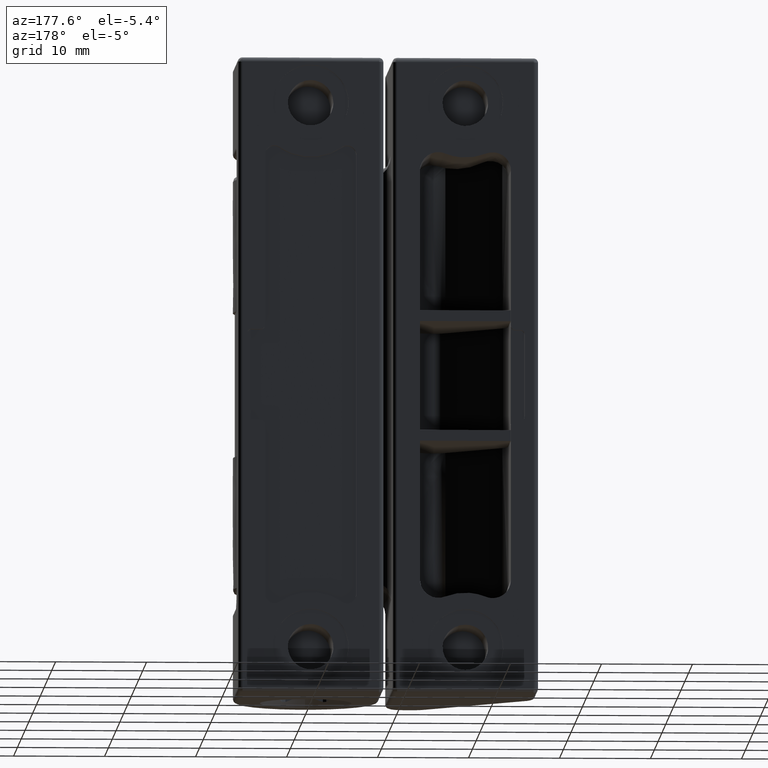
[diagram: clean part render]
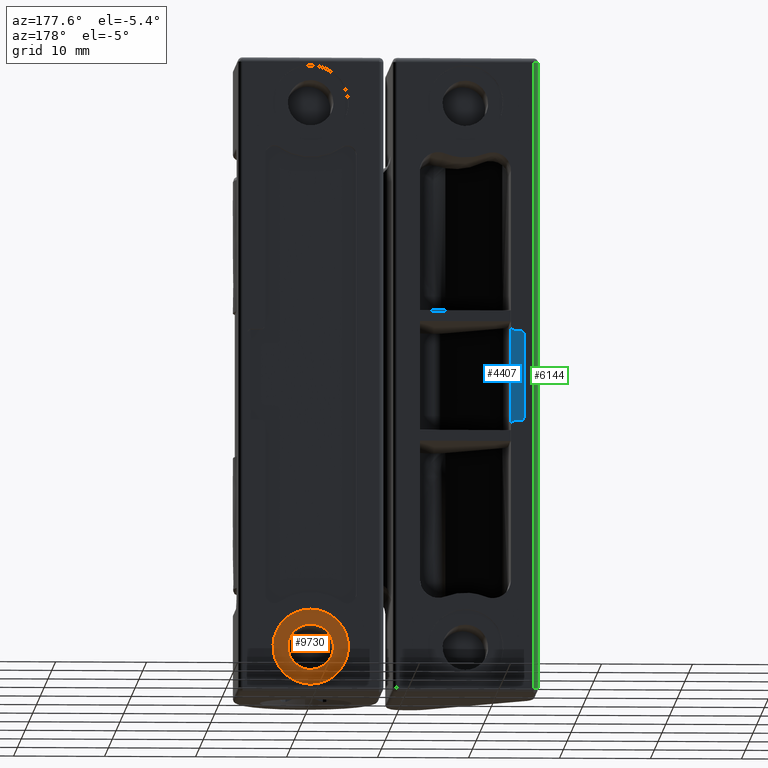
[diagram: same view with three faces highlighted in distinct colors, each labeled with its STEP entity id]
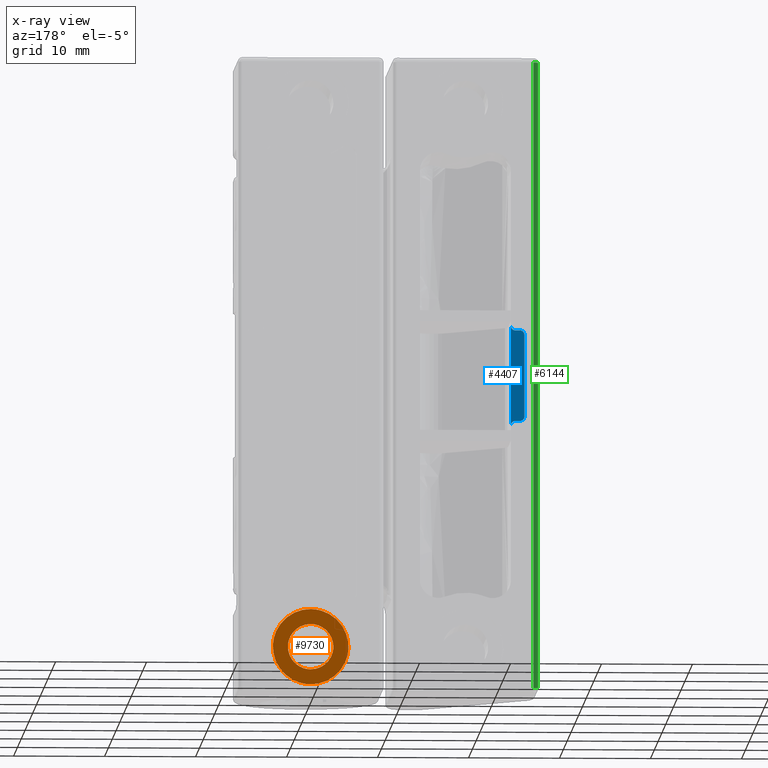
[diagram: x-ray of the same camera — body ghosted, the three highlighted faces saturated]
A machine part, auxiliary view with three faces highlighted in distinct colors.
The next image is the same camera in x-ray (body ghosted, the three faces saturated) — at least one of them is partly hidden behind the body in this view.
Their STEP definitions:

[orange] entity #9730 — the highlighted face is a freeform B-spline surface patch.
#7962=CARTESIAN_POINT('',(2.495336994671909,13.199999999999999,5.152621371445765));
#7963=VERTEX_POINT('',#7962);
#7969=CARTESIAN_POINT('',(5.056850E-014,13.199999999999999,2.499999999999910));
#7970=VERTEX_POINT('',#7969);
#7971=CARTESIAN_POINT('',(2.495336994671910,13.199999999999998,5.152621371445765));
#7972=CARTESIAN_POINT('',(2.500000000000050,13.200000000000005,5.076381919582435));
#7973=CARTESIAN_POINT('',(2.500000000000051,13.199999999999999,4.999999999999910));
#7974=CARTESIAN_POINT('',(2.500000000000051,13.199999999999998,2.499999999999909));
#7975=CARTESIAN_POINT('',(5.056850E-014,13.199999999999999,2.499999999999910));
#7983=(BOUNDED_CURVE()B_SPLINE_CURVE(2,(#7971,#7972,#7973,#7974,#7975),.UNSPECIFIED.,.F.,.U.)B_SPLINE_CURVE_WITH_KNOTS((3,2,3),(0.239332960678628,0.250000000000000,0.500000000000000),.UNSPECIFIED.)CURVE()GEOMETRIC_REPRESENTATION_ITEM()RATIONAL_B_SPLINE_CURVE((0.976072038322666,0.987502786071815,1.0,0.707106781186548,1.0))REPRESENTATION_ITEM(''));
#7984=EDGE_CURVE('',#7963,#7970,#7983,.T.);
#7986=CARTESIAN_POINT('',(-2.495336994671808,13.199999999999999,4.847378628554055));
#7987=VERTEX_POINT('',#7986);
#7988=CARTESIAN_POINT('',(5.056850E-014,13.199999999999999,2.499999999999910));
#7989=CARTESIAN_POINT('',(-2.351765145916473,13.199999999999998,2.499999999999910));
#7990=CARTESIAN_POINT('',(-2.495336994671809,13.199999999999999,4.847378628554056));
#7998=(BOUNDED_CURVE()B_SPLINE_CURVE(2,(#7988,#7989,#7990),.UNSPECIFIED.,.F.,.U.)B_SPLINE_CURVE_WITH_KNOTS((3,3),(0.500000000000000,0.739332960678628),.UNSPECIFIED.)CURVE()GEOMETRIC_REPRESENTATION_ITEM()RATIONAL_B_SPLINE_CURVE((1.0,0.719603995114733,0.976072038322666))REPRESENTATION_ITEM(''));
#7999=EDGE_CURVE('',#7970,#7987,#7998,.T.);
#8031=CARTESIAN_POINT('',(5.056850E-014,13.199999999999999,7.499999999999909));
#8032=VERTEX_POINT('',#8031);
#8033=CARTESIAN_POINT('',(-2.495336994671809,13.199999999999999,4.847378628554056));
#8034=CARTESIAN_POINT('',(-2.499999999999949,13.200000000000005,4.923618080417385));
#8035=CARTESIAN_POINT('',(-2.499999999999949,13.199999999999999,4.999999999999910));
#8036=CARTESIAN_POINT('',(-2.499999999999949,13.199999999999998,7.499999999999909));
#8037=CARTESIAN_POINT('',(5.056850E-014,13.199999999999999,7.499999999999909));
#8045=(BOUNDED_CURVE()B_SPLINE_CURVE(2,(#8033,#8034,#8035,#8036,#8037),.UNSPECIFIED.,.F.,.U.)B_SPLINE_CURVE_WITH_KNOTS((3,2,3),(0.739332960678628,0.750000000000000,1.0),.UNSPECIFIED.)CURVE()GEOMETRIC_REPRESENTATION_ITEM()RATIONAL_B_SPLINE_CURVE((0.976072038322666,0.987502786071815,1.0,0.707106781186548,1.0))REPRESENTATION_ITEM(''));
#8046=EDGE_CURVE('',#7987,#8032,#8045,.T.);
#8048=CARTESIAN_POINT('',(5.056850E-014,13.199999999999999,7.499999999999909));
#8049=CARTESIAN_POINT('',(2.351765145916574,13.199999999999998,7.499999999999909));
#8050=CARTESIAN_POINT('',(2.495336994671910,13.199999999999998,5.152621371445765));
#8058=(BOUNDED_CURVE()B_SPLINE_CURVE(2,(#8048,#8049,#8050),.UNSPECIFIED.,.F.,.U.)B_SPLINE_CURVE_WITH_KNOTS((3,3),(0.0,0.239332960678628),.UNSPECIFIED.)CURVE()GEOMETRIC_REPRESENTATION_ITEM()RATIONAL_B_SPLINE_CURVE((1.0,0.719603995114733,0.976072038322666))REPRESENTATION_ITEM(''));
#8059=EDGE_CURVE('',#8032,#7963,#8058,.T.);
#9653=CARTESIAN_POINT('',(-4.564482857333021,13.199999999999999,9.564584983912898));
#9654=CARTESIAN_POINT('',(4.564482708917557,13.199999999999999,9.564584983912898));
#9655=CARTESIAN_POINT('',(-4.564482857333021,13.199999999999999,0.435414793463573));
#9656=CARTESIAN_POINT('',(4.564482708917557,13.199999999999999,0.435414793463573));
#9657=B_SPLINE_SURFACE_WITH_KNOTS('',1,1,((#9653,#9655),(#9654,#9656)),.UNSPECIFIED.,.F.,.F.,.U.,(2,2),(2,2),(0.0,9.128965566250578),(0.0,9.129170190449324),.UNSPECIFIED.);
#9658=CARTESIAN_POINT('',(5.056850E-014,13.199999999999999,0.849999999999910));
#9659=VERTEX_POINT('',#9658);
#9660=CARTESIAN_POINT('',(-4.142259413448421,13.199999999999999,4.746648560893053));
#9661=VERTEX_POINT('',#9660);
#9662=CARTESIAN_POINT('',(5.056850E-014,13.199999999999999,0.849999999999910));
#9663=CARTESIAN_POINT('',(-3.903930177623456,13.199999999999999,0.849999999999910));
#9664=CARTESIAN_POINT('',(-4.142259413448422,13.199999999999996,4.746648560893053));
#9672=(BOUNDED_CURVE()B_SPLINE_CURVE(2,(#9662,#9663,#9664),.UNSPECIFIED.,.F.,.U.)B_SPLINE_CURVE_WITH_KNOTS((3,3),(0.0,0.239332962240419),.UNSPECIFIED.)CURVE()GEOMETRIC_REPRESENTATION_ITEM()RATIONAL_B_SPLINE_CURVE((1.0,0.719603993284981,0.976072041669881))REPRESENTATION_ITEM(''));
#9673=EDGE_CURVE('',#9659,#9661,#9672,.T.);
#9674=ORIENTED_EDGE('',*,*,#9673,.T.);
#9675=CARTESIAN_POINT('',(5.056850E-014,13.199999999999999,9.149999999999910));
#9676=VERTEX_POINT('',#9675);
#9677=CARTESIAN_POINT('',(-4.142259413448422,13.199999999999996,4.746648560893053));
#9678=CARTESIAN_POINT('',(-4.149999999999950,13.200000000000005,4.873206032292115));
#9679=CARTESIAN_POINT('',(-4.149999999999950,13.199999999999999,4.999999999999910));
#9680=CARTESIAN_POINT('',(-4.149999999999949,13.200000000000001,9.149999999999910));
#9681=CARTESIAN_POINT('',(5.056850E-014,13.199999999999999,9.149999999999910));
#9689=(BOUNDED_CURVE()B_SPLINE_CURVE(2,(#9677,#9678,#9679,#9680,#9681),.UNSPECIFIED.,.F.,.U.)B_SPLINE_CURVE_WITH_KNOTS((3,2,3),(0.239332962240419,0.250000000000000,0.500000000000000),.UNSPECIFIED.)CURVE()GEOMETRIC_REPRESENTATION_ITEM()RATIONAL_B_SPLINE_CURVE((0.976072041669881,0.987502787901566,1.0,0.707106781186547,1.0))REPRESENTATION_ITEM(''));
#9690=EDGE_CURVE('',#9661,#9676,#9689,.T.);
#9691=ORIENTED_EDGE('',*,*,#9690,.T.);
#9692=CARTESIAN_POINT('',(4.142259413448523,13.199999999999999,5.253351439106767));
#9693=VERTEX_POINT('',#9692);
#9694=CARTESIAN_POINT('',(5.056850E-014,13.199999999999999,9.149999999999910));
#9695=CARTESIAN_POINT('',(3.903930177623558,13.200000000000001,9.149999999999910));
#9696=CARTESIAN_POINT('',(4.142259413448524,13.199999999999998,5.253351439106767));
#9704=(BOUNDED_CURVE()B_SPLINE_CURVE(2,(#9694,#9695,#9696),.UNSPECIFIED.,.F.,.U.)B_SPLINE_CURVE_WITH_KNOTS((3,3),(0.500000000000000,0.739332962240419),.UNSPECIFIED.)CURVE()GEOMETRIC_REPRESENTATION_ITEM()RATIONAL_B_SPLINE_CURVE((1.0,0.719603993284981,0.976072041669880))REPRESENTATION_ITEM(''));
#9705=EDGE_CURVE('',#9676,#9693,#9704,.T.);
#9706=ORIENTED_EDGE('',*,*,#9705,.T.);
#9707=CARTESIAN_POINT('',(4.142259413448524,13.199999999999998,5.253351439106767));
#9708=CARTESIAN_POINT('',(4.150000000000051,13.200000000000005,5.126793967707707));
#9709=CARTESIAN_POINT('',(4.150000000000050,13.199999999999999,4.999999999999910));
#9710=CARTESIAN_POINT('',(4.150000000000049,13.200000000000001,0.849999999999910));
#9711=CARTESIAN_POINT('',(5.056850E-014,13.199999999999999,0.849999999999910));
#9719=(BOUNDED_CURVE()B_SPLINE_CURVE(2,(#9707,#9708,#9709,#9710,#9711),.UNSPECIFIED.,.F.,.U.)B_SPLINE_CURVE_WITH_KNOTS((3,2,3),(0.739332962240419,0.750000000000000,1.0),.UNSPECIFIED.)CURVE()GEOMETRIC_REPRESENTATION_ITEM()RATIONAL_B_SPLINE_CURVE((0.976072041669880,0.987502787901566,1.0,0.707106781186547,1.0))REPRESENTATION_ITEM(''));
#9720=EDGE_CURVE('',#9693,#9659,#9719,.T.);
#9721=ORIENTED_EDGE('',*,*,#9720,.T.);
#9722=EDGE_LOOP('',(#9674,#9691,#9706,#9721));
#9723=FACE_OUTER_BOUND('',#9722,.T.);
#9724=ORIENTED_EDGE('',*,*,#7999,.F.);
#9725=ORIENTED_EDGE('',*,*,#7984,.F.);
#9726=ORIENTED_EDGE('',*,*,#8059,.F.);
#9727=ORIENTED_EDGE('',*,*,#8046,.F.);
#9728=EDGE_LOOP('',(#9724,#9725,#9726,#9727));
#9729=FACE_BOUND('',#9728,.T.);
#9730=ADVANCED_FACE('',(#9723,#9729),#9657,.T.);

[blue] entity #4407 — the highlighted face is a freeform B-spline surface patch.
#4312=CARTESIAN_POINT('',(-23.574924997092712,12.999999999996600,41.049449978679867));
#4313=CARTESIAN_POINT('',(-21.925074962674159,12.999999999996600,41.049449978679867));
#4314=CARTESIAN_POINT('',(-23.574924997092712,12.999999999996600,28.950549726277139));
#4315=CARTESIAN_POINT('',(-21.925074962674159,12.999999999996600,28.950549726277139));
#4316=B_SPLINE_SURFACE_WITH_KNOTS('',1,1,((#4312,#4314),(#4313,#4315)),.UNSPECIFIED.,.F.,.F.,.U.,(2,2),(2,2),(0.041708334948495,0.958291687403247),(0.0,12.098900252402730),.UNSPECIFIED.);
#4317=CARTESIAN_POINT('',(-23.500000000000000,12.999999999996559,39.500000000000000));
#4318=VERTEX_POINT('',#4317);
#4319=CARTESIAN_POINT('',(-23.500000000000000,12.999999999996559,30.500000000000000));
#4320=VERTEX_POINT('',#4319);
#4321=CARTESIAN_POINT('',(-23.500000000000000,12.999999999996559,39.500000000000000));
#4322=CARTESIAN_POINT('',(-23.500000000000000,12.999999999996559,30.500000000000000));
#4323=QUASI_UNIFORM_CURVE('',1,(#4321,#4322),.UNSPECIFIED.,.F.,.U.);
#4324=EDGE_CURVE('',#4318,#4320,#4323,.T.);
#4325=ORIENTED_EDGE('',*,*,#4324,.F.);
#4326=CARTESIAN_POINT('',(-23.0,12.999999999996559,40.0));
#4327=VERTEX_POINT('',#4326);
#4328=CARTESIAN_POINT('',(-23.0,12.999999999996559,40.0));
#4329=CARTESIAN_POINT('',(-23.500000000000004,12.999999999996559,39.999999999999993));
#4330=CARTESIAN_POINT('',(-23.500000000000000,12.999999999996559,39.500000000000000));
#4338=(BOUNDED_CURVE()B_SPLINE_CURVE(2,(#4328,#4329,#4330),.UNSPECIFIED.,.F.,.U.)CURVE()GEOMETRIC_REPRESENTATION_ITEM()QUASI_UNIFORM_CURVE()RATIONAL_B_SPLINE_CURVE((1.0,0.707106781186548,1.0))REPRESENTATION_ITEM(''));
#4339=EDGE_CURVE('',#4327,#4318,#4338,.T.);
#4340=ORIENTED_EDGE('',*,*,#4339,.F.);
#4341=CARTESIAN_POINT('',(-22.500000000000000,12.999999999996559,40.0));
#4342=VERTEX_POINT('',#4341);
#4343=CARTESIAN_POINT('',(-22.500000000000000,12.999999999996559,40.0));
#4344=CARTESIAN_POINT('',(-23.0,12.999999999996559,40.0));
#4345=QUASI_UNIFORM_CURVE('',1,(#4343,#4344),.UNSPECIFIED.,.F.,.U.);
#4346=EDGE_CURVE('',#4342,#4327,#4345,.T.);
#4347=ORIENTED_EDGE('',*,*,#4346,.F.);
#4348=CARTESIAN_POINT('',(-22.0,12.999999999996559,40.500000000000000));
#4349=VERTEX_POINT('',#4348);
#4350=CARTESIAN_POINT('',(-22.500000000000000,12.999999999996559,40.0));
#4351=CARTESIAN_POINT('',(-22.000000000000007,12.999999999996559,39.999999999999993));
#4352=CARTESIAN_POINT('',(-22.0,12.999999999996559,40.500000000000000));
#4360=(BOUNDED_CURVE()B_SPLINE_CURVE(2,(#4350,#4351,#4352),.UNSPECIFIED.,.F.,.U.)CURVE()GEOMETRIC_REPRESENTATION_ITEM()QUASI_UNIFORM_CURVE()RATIONAL_B_SPLINE_CURVE((1.0,0.707106781186548,1.0))REPRESENTATION_ITEM(''));
#4361=EDGE_CURVE('',#4342,#4349,#4360,.T.);
#4362=ORIENTED_EDGE('',*,*,#4361,.T.);
#4363=CARTESIAN_POINT('',(-22.0,12.999999999996559,29.500000000000000));
#4364=VERTEX_POINT('',#4363);
#4365=CARTESIAN_POINT('',(-22.0,12.999999999996559,29.500000000000000));
#4366=CARTESIAN_POINT('',(-22.0,12.999999999996559,40.500000000000000));
#4367=QUASI_UNIFORM_CURVE('',1,(#4365,#4366),.UNSPECIFIED.,.F.,.U.);
#4368=EDGE_CURVE('',#4364,#4349,#4367,.T.);
#4369=ORIENTED_EDGE('',*,*,#4368,.F.);
#4370=CARTESIAN_POINT('',(-22.500000000000000,12.999999999996559,30.0));
#4371=VERTEX_POINT('',#4370);
#4372=CARTESIAN_POINT('',(-22.0,12.999999999996559,29.500000000000000));
#4373=CARTESIAN_POINT('',(-22.000000000000007,12.999999999996559,30.000000000000004));
#4374=CARTESIAN_POINT('',(-22.500000000000000,12.999999999996559,30.0));
#4382=(BOUNDED_CURVE()B_SPLINE_CURVE(2,(#4372,#4373,#4374),.UNSPECIFIED.,.F.,.U.)CURVE()GEOMETRIC_REPRESENTATION_ITEM()QUASI_UNIFORM_CURVE()RATIONAL_B_SPLINE_CURVE((1.0,0.707106781186548,1.0))REPRESENTATION_ITEM(''));
#4383=EDGE_CURVE('',#4364,#4371,#4382,.T.);
#4384=ORIENTED_EDGE('',*,*,#4383,.T.);
#4385=CARTESIAN_POINT('',(-23.0,12.999999999996559,30.0));
#4386=VERTEX_POINT('',#4385);
#4387=CARTESIAN_POINT('',(-23.0,12.999999999996559,30.0));
#4388=CARTESIAN_POINT('',(-22.500000000000000,12.999999999996559,30.0));
#4389=QUASI_UNIFORM_CURVE('',1,(#4387,#4388),.UNSPECIFIED.,.F.,.U.);
#4390=EDGE_CURVE('',#4386,#4371,#4389,.T.);
#4391=ORIENTED_EDGE('',*,*,#4390,.F.);
#4392=CARTESIAN_POINT('',(-23.500000000000011,12.999999999996559,30.500000000000000));
#4393=CARTESIAN_POINT('',(-23.500000000000004,12.999999999996559,29.999999999999989));
#4394=CARTESIAN_POINT('',(-23.0,12.999999999996559,29.999999999999989));
#4402=(BOUNDED_CURVE()B_SPLINE_CURVE(2,(#4392,#4393,#4394),.UNSPECIFIED.,.F.,.U.)CURVE()GEOMETRIC_REPRESENTATION_ITEM()QUASI_UNIFORM_CURVE()RATIONAL_B_SPLINE_CURVE((1.0,0.707106781186548,1.0))REPRESENTATION_ITEM(''));
#4403=EDGE_CURVE('',#4320,#4386,#4402,.T.);
#4404=ORIENTED_EDGE('',*,*,#4403,.F.);
#4405=EDGE_LOOP('',(#4325,#4340,#4347,#4362,#4369,#4384,#4391,#4404));
#4406=FACE_OUTER_BOUND('',#4405,.T.);
#4407=ADVANCED_FACE('',(#4406),#4316,.T.);

[green] entity #6144 — the highlighted face is a freeform B-spline surface patch.
#5126=CARTESIAN_POINT('',(-24.500000000000000,13.499999999996600,69.500000000000000));
#5127=VERTEX_POINT('',#5126);
#5194=CARTESIAN_POINT('',(-24.500000000000000,13.499999999996600,0.499999999999834));
#5195=VERTEX_POINT('',#5194);
#5472=CARTESIAN_POINT('',(-25.0,12.999999999996600,69.500000000000000));
#5473=VERTEX_POINT('',#5472);
#5479=CARTESIAN_POINT('',(-25.0,12.999999999996600,0.499999999999834));
#5480=VERTEX_POINT('',#5479);
#5481=CARTESIAN_POINT('',(-25.0,12.999999999996600,69.500000000000000));
#5482=CARTESIAN_POINT('',(-25.0,12.999999999996600,0.499999999999834));
#5483=QUASI_UNIFORM_CURVE('',1,(#5481,#5482),.UNSPECIFIED.,.F.,.U.);
#5484=EDGE_CURVE('',#5473,#5480,#5483,.T.);
#5499=CARTESIAN_POINT('',(-24.500000000000000,13.499999999996600,0.499999999999834));
#5500=CARTESIAN_POINT('',(-24.500000000000000,13.499999999996600,69.500000000000000));
#5501=QUASI_UNIFORM_CURVE('',1,(#5499,#5500),.UNSPECIFIED.,.F.,.U.);
#5502=EDGE_CURVE('',#5195,#5127,#5501,.T.);
#6056=CARTESIAN_POINT('',(-24.500000000000000,13.499999999996600,69.500000000000000));
#6057=CARTESIAN_POINT('',(-25.0,13.499999999996604,69.500000000000000));
#6058=CARTESIAN_POINT('',(-25.0,12.999999999996600,69.500000000000000));
#6066=(BOUNDED_CURVE()B_SPLINE_CURVE(2,(#6056,#6057,#6058),.UNSPECIFIED.,.F.,.U.)CURVE()GEOMETRIC_REPRESENTATION_ITEM()QUASI_UNIFORM_CURVE()RATIONAL_B_SPLINE_CURVE((1.0,0.707106781186548,1.0))REPRESENTATION_ITEM(''));
#6067=EDGE_CURVE('',#5127,#5473,#6066,.T.);
#6112=CARTESIAN_POINT('',(-24.495636732250809,13.499980961528690,71.225000000000023));
#6113=CARTESIAN_POINT('',(-24.495636732250809,13.499980961528690,-1.268125000000178));
#6114=CARTESIAN_POINT('',(-25.031800671005868,13.504659993336377,71.225000000000023));
#6115=CARTESIAN_POINT('',(-25.031800671005868,13.504659993336377,-1.268125000000178));
#6116=CARTESIAN_POINT('',(-24.999067399210929,12.969475730229171,71.225000000000023));
#6117=CARTESIAN_POINT('',(-24.999067399210929,12.969475730229171,-1.268125000000178));
#6125=(BOUNDED_SURFACE()B_SPLINE_SURFACE(1,2,((#6112,#6114,#6116),(#6113,#6115,#6117)),.UNSPECIFIED.,.F.,.F.,.U.)B_SPLINE_SURFACE_WITH_KNOTS((2,2),(3,3),(0.0,72.493125000000205),(0.0,1.0),.UNSPECIFIED.)GEOMETRIC_REPRESENTATION_ITEM()RATIONAL_B_SPLINE_SURFACE(((1.0,0.681998360062499,1.0),(1.0,0.681998360062499,1.0)))REPRESENTATION_ITEM('')SURFACE());
#6126=CARTESIAN_POINT('',(-24.500000000000000,13.499999999996600,0.499999999999834));
#6127=CARTESIAN_POINT('',(-25.0,13.499999999996604,0.499999999999834));
#6128=CARTESIAN_POINT('',(-25.0,12.999999999996600,0.499999999999834));
#6136=(BOUNDED_CURVE()B_SPLINE_CURVE(2,(#6126,#6127,#6128),.UNSPECIFIED.,.F.,.U.)CURVE()GEOMETRIC_REPRESENTATION_ITEM()QUASI_UNIFORM_CURVE()RATIONAL_B_SPLINE_CURVE((1.0,0.707106781186548,1.0))REPRESENTATION_ITEM(''));
#6137=EDGE_CURVE('',#5195,#5480,#6136,.T.);
#6138=ORIENTED_EDGE('',*,*,#6137,.T.);
#6139=ORIENTED_EDGE('',*,*,#5484,.F.);
#6140=ORIENTED_EDGE('',*,*,#6067,.F.);
#6141=ORIENTED_EDGE('',*,*,#5502,.F.);
#6142=EDGE_LOOP('',(#6138,#6139,#6140,#6141));
#6143=FACE_OUTER_BOUND('',#6142,.T.);
#6144=ADVANCED_FACE('',(#6143),#6125,.T.);